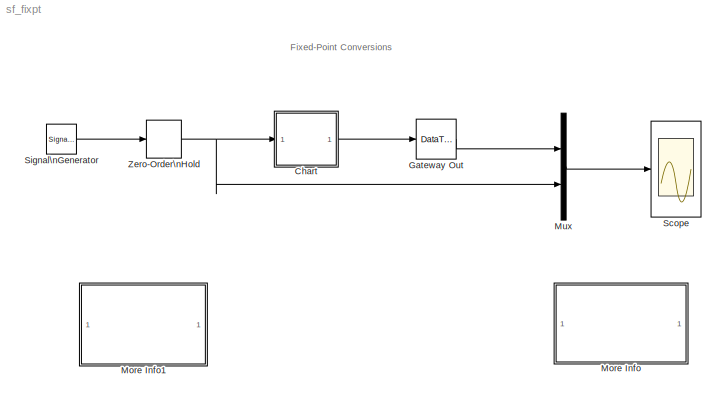
MODEL sf_fixpt
KIND model
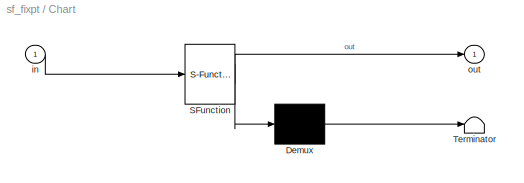
BLOCK [SubSystem] Chart
  MaskDescription = Stateflow diagram
  MaskDisplay = plot(sf('Private','sfblk','xIcon'),sf('Private','sfblk','yIcon'));text(0.5,0,sf('Private', 'sfblk', 'tIcon'),'HorizontalAl','Center','VerticalAl','Bottom');
  MaskIconFrame = off
  MaskIconOpaque = off
  MaskIconRotate = none
  MaskIconUnits = autoscale
  MaskSelfModifiable = on
  MaskType = Stateflow
  MinAlgLoopOccurrences = off
  Ports = [1, 1]
  PropExecContextAcrossSSBoundary = on
  RTWSystemCode = Auto
  TreatAsAtomicUnit = off
BLOCK [Demux] Chart/ Demux 
  Outputs = 1
  Ports = [1, 1]
BLOCK [S-Function] Chart/ SFunction 
  FunctionName = sf_sfun
  PortCounts = [1 2]
  Ports = [1, 2]
  Tag = Stateflow S-Function sf_fixpt 1
BLOCK [Terminator] Chart/ Terminator 
BLOCK [Inport] Chart/in
  IconDisplay = Port number
  LatchInput = off
  Port = 1
BLOCK [Outport] Chart/out
  IconDisplay = Port number
BLOCK [DataTypeConversion] Gateway Out
  OutDataTypeMode = double
  RndMeth = Floor
  SaturateOnIntegerOverflow = off
BLOCK [SubSystem] More Info
  MaskDisplay = disp('Double click\\nhere for\\ninformation on\\nthis demonstration')
  MaskIconFrame = on
  MaskIconOpaque = on
  MaskIconRotate = none
  MaskIconUnits = autoscale
  MinAlgLoopOccurrences = off
  Ports = []
  PropExecContextAcrossSSBoundary = on
  RTWSystemCode = Auto
  TreatAsAtomicUnit = off
BLOCK [SubSystem] More Info1
  MaskDisplay = disp('Double click\\nhere for<path> Help')
  MaskIconFrame = on
  MaskIconOpaque = on
  MaskIconRotate = none
  MaskIconUnits = autoscale
  MinAlgLoopOccurrences = off
  OpenFcn = simcad(bdroot);
  Ports = []
  PropExecContextAcrossSSBoundary = on
  RTWSystemCode = Auto
  TreatAsAtomicUnit = off
BLOCK [Mux] Mux
  DisplayOption = bar
  Inputs = 2
  Ports = [2, 1]
BLOCK [Scope] Scope
  DataFormat = StructureWithTime
  NumInputPorts = 1
  Ports = [1]
  TimeRange = 1
  YMax = 10
  YMin = -10
BLOCK [SignalGenerator] Signal\nGenerator
  Amplitude = 10
  Ports = [0, 1]
  WaveForm = sawtooth
BLOCK [ZeroOrderHold] Zero-Order\nHold
  SampleTime = .001
ANNOTATION (root): Fixed-Point Conversions
ANNOTATION More Info: Fixed-Point Multiplication
ANNOTATION More Info: Stateflow allows you to include fixed-point data in your chart. This demonstration illustrates \nhow you can input a value of type 'double' to a stateflow chart and output a fixed-point data \ntype back to Simulink. The output data type is an 8 bit signed integer with a slope bias of 2^-5.\nThis means that the maximum value of the output is 3.96875 and the minimum value is -4. \n\nIf you run the s...<+305ch>
LINE Chart/ Demux :1 -> Chart/ Terminator :1
LINE Chart/ SFunction :1 -> Chart/ Demux :1
LINE Chart/ SFunction :2 -> Chart/out:1
LINE Chart/in:1 -> Chart/ SFunction :1
LINE Chart:1 -> Gateway Out:1
LINE Gateway Out:1 -> Mux:1
LINE Mux:1 -> Scope:1
LINE Signal\nGenerator:1 -> Zero-Order\nHold:1
NET Zero-Order\nHold:1 -> Chart:1, Mux:2
note: NET lines group one-source signal fan-out (src -> all destinations, sorted); 1:1 wires keep LINE
CHART Chart states=1 transitions=1
  STATE_LABEL 'Note: Converting a double to a fixpt type\\ncontains an inherent overflow and this\\nis detected by the Stateflow Debugger.\\nFor illustrative purposes, this data-range\\ncheck is turned off in the Stateflow Debugger.'
note: 1 file-system path scrubbed to <path> (not preserved elsewhere — flat text is the only slx artifact)
